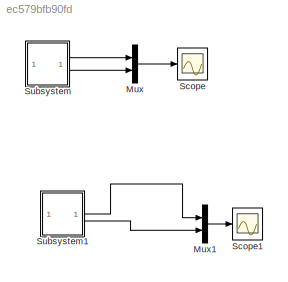
MODEL slx_ec579bfb90fd
KIND model
CONFIG AbsTol = auto
CONFIG EnableMultiTasking = off
CONFIG FixedStep = auto
CONFIG MaxStep = auto
CONFIG MinStep = auto
CONFIG RelTol = 1e-3
CONFIG SampleTimeConstraint = Unconstrained
CONFIG SolverName = VariableStepAuto
CONFIG StartTime = 0.0
CONFIG StopTime = 10.0
BLOCK [Mux] Mux
  DisplayOption = bar
  Inputs = 2
BLOCK [Mux] Mux1
  DisplayOption = bar
  Inputs = 2
BLOCK [Scope] Scope
  Floating = off
  NumInputPorts = 1
  ScopeSpecificationString = Simulink.scopes.TimeScopeBlockCfg('CurrentConfiguration', extmgr.ConfigurationSet(extmgr.Configuration('Core','General UI',true),extmgr.Configuration('Core','Source UI',true),extmgr.Configuration('Sources','WiredSimulink',true),extmgr.Configuration('Visuals','Time Domain',true,'SerializedDisplays',{struct('MinYLimReal','-0.0081','MaxYLimReal','0.01315','YLabelReal','','MinYLimMag','0.00000','MaxYL...<+1387ch>
BLOCK [Scope] Scope1
  Floating = off
  NumInputPorts = 1
  ScopeSpecificationString = Simulink.scopes.TimeScopeBlockCfg('CurrentConfiguration', extmgr.ConfigurationSet(extmgr.Configuration('Core','General UI',true),extmgr.Configuration('Core','Source UI',true),extmgr.Configuration('Sources','WiredSimulink',true,'DataLoggingVariableName','ScopeData1'),extmgr.Configuration('Visuals','Time Domain',true,'SerializedDisplays',{struct('MinYLimReal','-0.05453','MaxYLimReal','0.49075','YLab...<+1441ch>
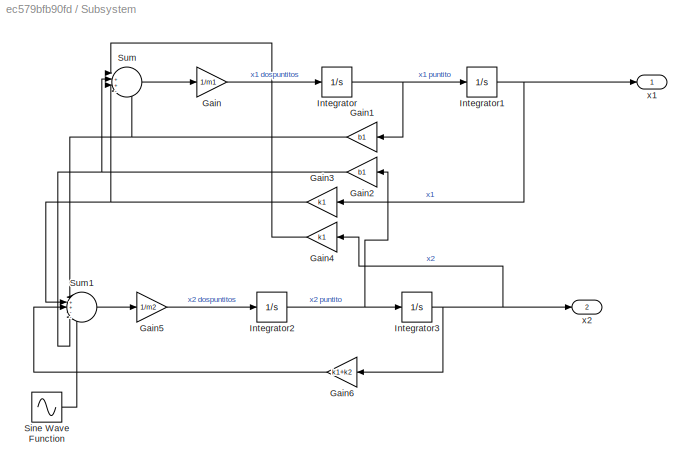
BLOCK [SubSystem] Subsystem
BLOCK [Gain] Subsystem/Gain
  Gain = 1/m1
BLOCK [Gain] Subsystem/Gain1
  Gain = b1
  NameLocation = top
BLOCK [Gain] Subsystem/Gain2
  Gain = b1
  NameLocation = top
BLOCK [Gain] Subsystem/Gain3
  Gain = k1
  NameLocation = top
BLOCK [Gain] Subsystem/Gain4
  Gain = k1
  NameLocation = top
BLOCK [Gain] Subsystem/Gain5
  Gain = 1/m2
BLOCK [Gain] Subsystem/Gain6
  Gain = k1+k2
  NameLocation = top
BLOCK [Integrator] Subsystem/Integrator
BLOCK [Integrator] Subsystem/Integrator1
BLOCK [Integrator] Subsystem/Integrator2
BLOCK [Integrator] Subsystem/Integrator3
BLOCK [Sin] Subsystem/Sine Wave Function
  Amplitude = 0.05*k2
  Frequency = 20*pi
  SampleTime = 0
BLOCK [Sum] Subsystem/Sum
  Inputs = |++--
BLOCK [Sum] Subsystem/Sum1
  Inputs = |++--+
BLOCK [Outport] Subsystem/x1
BLOCK [Outport] Subsystem/x2
  Port = 2
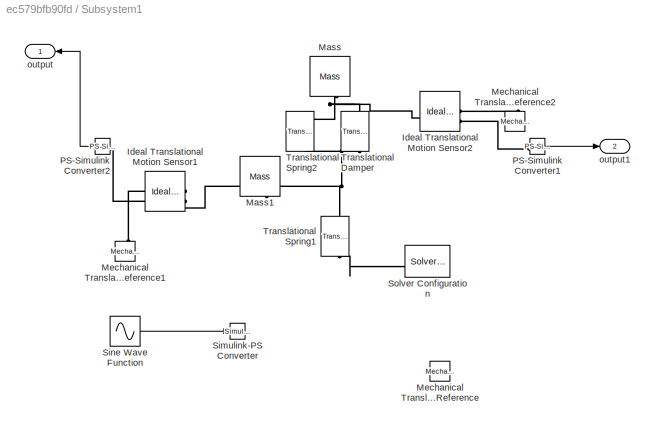
BLOCK [SubSystem] Subsystem1
BLOCK [Reference] Subsystem1/Ideal Translational Motion Sensor1  REF=fl_lib/Mechanical/Mechanical Sensors/Ideal Translational
Motion Sensor
  NameLocation = top
  SourceBlock = fl_lib/Mechanical/Mechanical Sensors/Ideal Translational\nMotion Sensor
  SourceType = Ideal Translational\nMotion Sensor
BLOCK [Reference] Subsystem1/Ideal Translational Motion Sensor2  REF=fl_lib/Mechanical/Mechanical Sensors/Ideal Translational
Motion Sensor
  SourceBlock = fl_lib/Mechanical/Mechanical Sensors/Ideal Translational\nMotion Sensor
  SourceType = Ideal Translational\nMotion Sensor
BLOCK [Reference] Subsystem1/Mass  REF=fl_lib/Mechanical/Translational
Elements/Mass
  NameLocation = left
  SourceBlock = fl_lib/Mechanical/Translational\nElements/Mass
  SourceType = Mass
BLOCK [Reference] Subsystem1/Mass1  REF=fl_lib/Mechanical/Translational
Elements/Mass
  NameLocation = left
  SourceBlock = fl_lib/Mechanical/Translational\nElements/Mass
  SourceType = Mass
BLOCK [Reference] Subsystem1/Mechanical Translational Reference  REF=fl_lib/Mechanical/Translational
Elements/Mechanical
Translational
Reference
  NameLocation = right
  SourceBlock = fl_lib/Mechanical/Translational\nElements/Mechanical\nTranslational\nReference
  SourceType = Mechanical\nTranslational\nReference
BLOCK [Reference] Subsystem1/Mechanical Translational Reference1  REF=fl_lib/Mechanical/Translational
Elements/Mechanical
Translational
Reference
  NameLocation = right
  SourceBlock = fl_lib/Mechanical/Translational\nElements/Mechanical\nTranslational\nReference
  SourceType = Mechanical\nTranslational\nReference
BLOCK [Reference] Subsystem1/Mechanical Translational Reference2  REF=fl_lib/Mechanical/Translational
Elements/Mechanical
Translational
Reference
  NameLocation = right
  SourceBlock = fl_lib/Mechanical/Translational\nElements/Mechanical\nTranslational\nReference
  SourceType = Mechanical\nTranslational\nReference
BLOCK [Reference] Subsystem1/PS-Simulink Converter1  REF=nesl_utility/PS-Simulink
Converter
  SourceBlock = nesl_utility/PS-Simulink\nConverter
  SourceType = PS-Simulink\nConverter
BLOCK [Reference] Subsystem1/PS-Simulink Converter2  REF=nesl_utility/PS-Simulink
Converter
  NameLocation = top
  SourceBlock = nesl_utility/PS-Simulink\nConverter
  SourceType = PS-Simulink\nConverter
BLOCK [Reference] Subsystem1/Simulink-PS Converter  REF=nesl_utility/Simulink-PS
Converter
  SourceBlock = nesl_utility/Simulink-PS\nConverter
  SourceType = Simulink-PS\nConverter
BLOCK [Sin] Subsystem1/Sine Wave Function
  Amplitude = 0.05*k2
  Frequency = 20*pi
  SampleTime = 0
BLOCK [Reference] Subsystem1/Solver Configuration  REF=nesl_utility/Solver
Configuration
  NameLocation = top
  SourceBlock = nesl_utility/Solver\nConfiguration
  SourceType = Solver\nConfiguration
BLOCK [Reference] Subsystem1/Translational Damper  REF=fl_lib/Mechanical/Translational
Elements/Translational Damper
  NameLocation = right
  SourceBlock = fl_lib/Mechanical/Translational\nElements/Translational Damper
  SourceType = Translational Damper
BLOCK [Reference] Subsystem1/Translational Spring1  REF=fl_lib/Mechanical/Translational
Elements/Translational Spring
  NameLocation = right
  SourceBlock = fl_lib/Mechanical/Translational\nElements/Translational Spring
  SourceType = Translational Spring
BLOCK [Reference] Subsystem1/Translational Spring2  REF=fl_lib/Mechanical/Translational
Elements/Translational Spring
  NameLocation = right
  SourceBlock = fl_lib/Mechanical/Translational\nElements/Translational Spring
  SourceType = Translational Spring
BLOCK [Outport] Subsystem1/output
BLOCK [Outport] Subsystem1/output1
  Port = 2
LINE Mux1:1 -> Scope1:1
LINE Mux:1 -> Scope:1
NET Subsystem/Gain1:1 -> Subsystem/Sum1:1, Subsystem/Sum:4
NET Subsystem/Gain2:1 -> Subsystem/Sum1:4, Subsystem/Sum:2
NET Subsystem/Gain3:1 -> Subsystem/Sum1:2, Subsystem/Sum:3
LINE Subsystem/Gain4:1 -> Subsystem/Sum:1
LINE Subsystem/Gain5:1 -> Subsystem/Integrator2:1
LINE Subsystem/Gain6:1 -> Subsystem/Sum1:3
LINE Subsystem/Gain:1 -> Subsystem/Integrator:1
NET Subsystem/Integrator1:1 -> Subsystem/Gain3:1, Subsystem/x1:1
NET Subsystem/Integrator2:1 -> Subsystem/Gain2:1, Subsystem/Integrator3:1
NET Subsystem/Integrator3:1 -> Subsystem/Gain4:1, Subsystem/Gain6:1, Subsystem/x2:1
NET Subsystem/Integrator:1 -> Subsystem/Gain1:1, Subsystem/Integrator1:1
LINE Subsystem/Sine Wave Function:1 -> Subsystem/Sum1:5
LINE Subsystem/Sum1:1 -> Subsystem/Gain5:1
LINE Subsystem/Sum:1 -> Subsystem/Gain:1
LINE Subsystem1/PS-Simulink Converter1:1 -> Subsystem1/output1:1
LINE Subsystem1/PS-Simulink Converter2:1 -> Subsystem1/output:1
LINE Subsystem1/Sine Wave Function:1 -> Subsystem1/Simulink-PS Converter:1
LINE Subsystem1:1 -> Mux1:1
LINE Subsystem1:2 -> Mux1:2
LINE Subsystem:1 -> Mux:1
LINE Subsystem:2 -> Mux:2
PNET net1: Subsystem1/Ideal Translational Motion Sensor1:LConn1 -- Subsystem1/Mass1:LConn1 -- Subsystem1/Translational Damper:LConn1 -- Subsystem1/Translational Spring1:RConn1 -- Subsystem1/Translational Spring2:LConn1
PLINE Subsystem1/Ideal Translational Motion Sensor1:RConn1 -- Subsystem1/Mechanical Translational Reference1:LConn1
PLINE Subsystem1/Ideal Translational Motion Sensor1:RConn2 -- Subsystem1/PS-Simulink Converter2:LConn1
PNET net2: Subsystem1/Ideal Translational Motion Sensor2:LConn1 -- Subsystem1/Mass:LConn1 -- Subsystem1/Translational Damper:RConn1 -- Subsystem1/Translational Spring2:RConn1
PLINE Subsystem1/Ideal Translational Motion Sensor2:RConn1 -- Subsystem1/Mechanical Translational Reference2:LConn1
PLINE Subsystem1/Ideal Translational Motion Sensor2:RConn2 -- Subsystem1/PS-Simulink Converter1:LConn1
PLINE Subsystem1/Solver Configuration:RConn1 -- Subsystem1/Translational Spring1:LConn1
note: NET lines group one-source signal fan-out (src -> all destinations, sorted); 1:1 wires keep LINE; PNET lines group multi-terminal physical nets as a canonical sorted terminal list (undirected conserving connections); 2-terminal nets keep the pairwise PLINE form
